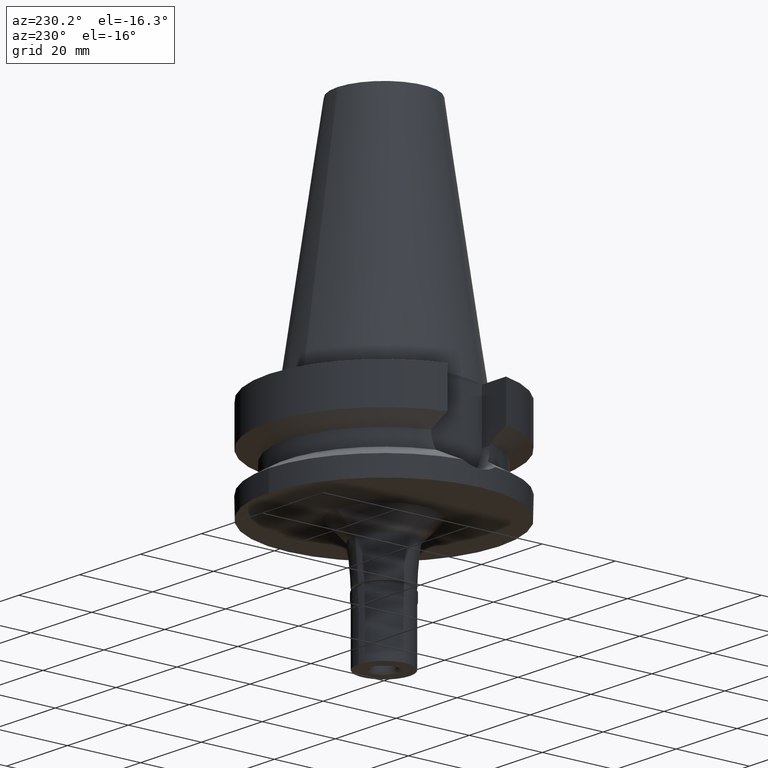
[diagram: clean part render]
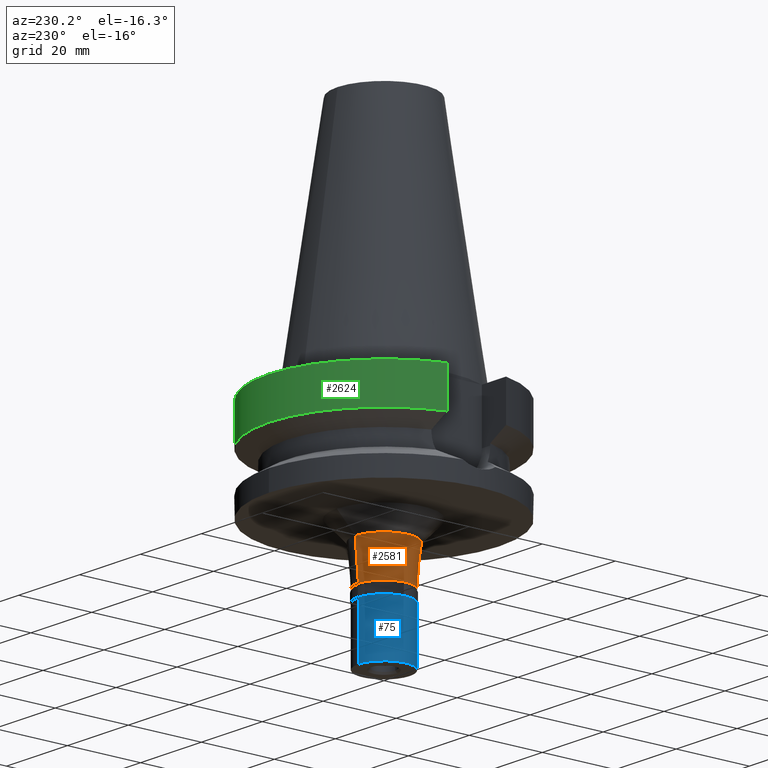
[diagram: same view with three faces highlighted in distinct colors, each labeled with its STEP entity id]
A machine part, auxiliary view with three faces highlighted in distinct colors.
Their STEP definitions:

[orange] entity #2581 — the highlighted conical surface has half-angle 5 deg.
#32 = LINE ( 'NONE', #270, #374 ) ;
#87 = DIRECTION ( 'NONE',  ( 0.0000000000000000000, 1.000000000000000000, 0.0000000000000000000 ) ) ;
#170 = EDGE_CURVE ( 'NONE', #1891, #2544, #873, .T. ) ;
#177 = EDGE_LOOP ( 'NONE', ( #793, #1823, #385, #601 ) ) ;
#270 = CARTESIAN_POINT ( 'NONE',  ( 0.0000000000000000000, -7.901133234318000298, -32.00000000000000000 ) ) ;
#374 = VECTOR ( 'NONE', #552, 1000.000000000000114 ) ;
#385 = ORIENTED_EDGE ( 'NONE', *, *, #732, .T. ) ;
#552 = DIRECTION ( 'NONE',  ( 0.0000000000000000000, 0.08715574274773338348, -0.9961946980917388839 ) ) ;
#584 = CARTESIAN_POINT ( 'NONE',  ( 0.0000000000000000000, 0.0000000000000000000, -32.00000000000000000 ) ) ;
#601 = ORIENTED_EDGE ( 'NONE', *, *, #170, .T. ) ;
#658 = EDGE_CURVE ( 'NONE', #2544, #1069, #942, .T. ) ;
#732 = EDGE_CURVE ( 'NONE', #955, #1891, #1819, .T. ) ;
#780 = CARTESIAN_POINT ( 'NONE',  ( 0.0000000000000000000, 7.000000000000000000, -42.29999999999999716 ) ) ;
#793 = ORIENTED_EDGE ( 'NONE', *, *, #658, .T. ) ;
#819 = DIRECTION ( 'NONE',  ( 0.0000000000000000000, 0.0000000000000000000, 1.000000000000000000 ) ) ;
#873 = LINE ( 'NONE', #2486, #2251 ) ;
#899 = AXIS2_PLACEMENT_3D ( 'NONE', #584, #2466, #2647 ) ;
#942 = CIRCLE ( 'NONE', #1126, 7.000000000000000000 ) ;
#955 = VERTEX_POINT ( 'NONE', #2277 ) ;
#971 = FACE_OUTER_BOUND ( 'NONE', #177, .T. ) ;
#1069 = VERTEX_POINT ( 'NONE', #2618 ) ;
#1097 = CONICAL_SURFACE ( 'NONE', #2270, 7.450566617158999705, 0.08726646259969973729 ) ;
#1126 = AXIS2_PLACEMENT_3D ( 'NONE', #1949, #819, #2883 ) ;
#1582 = DIRECTION ( 'NONE',  ( 0.0000000000000000000, -0.08715574274773338348, -0.9961946980917388839 ) ) ;
#1819 = CIRCLE ( 'NONE', #899, 7.901133234318999499 ) ;
#1823 = ORIENTED_EDGE ( 'NONE', *, *, #2279, .F. ) ;
#1891 = VERTEX_POINT ( 'NONE', #2908 ) ;
#1931 = DIRECTION ( 'NONE',  ( 0.0000000000000000000, 0.0000000000000000000, 1.000000000000000000 ) ) ;
#1949 = CARTESIAN_POINT ( 'NONE',  ( 0.0000000000000000000, 0.0000000000000000000, -42.29999999999999716 ) ) ;
#2108 = CARTESIAN_POINT ( 'NONE',  ( 0.0000000000000000000, 0.0000000000000000000, -37.15000000000000568 ) ) ;
#2251 = VECTOR ( 'NONE', #1582, 1000.000000000000114 ) ;
#2270 = AXIS2_PLACEMENT_3D ( 'NONE', #2108, #1931, #87 ) ;
#2277 = CARTESIAN_POINT ( 'NONE',  ( 0.0000000000000000000, -7.901133234318000298, -32.00000000000000000 ) ) ;
#2279 = EDGE_CURVE ( 'NONE', #955, #1069, #32, .T. ) ;
#2466 = DIRECTION ( 'NONE',  ( 0.0000000000000000000, 0.0000000000000000000, -1.000000000000000000 ) ) ;
#2486 = CARTESIAN_POINT ( 'NONE',  ( 0.0000000000000000000, 7.901133234318000298, -32.00000000000000000 ) ) ;
#2544 = VERTEX_POINT ( 'NONE', #780 ) ;
#2581 = ADVANCED_FACE ( 'NONE', ( #971 ), #1097, .T. ) ;
#2618 = CARTESIAN_POINT ( 'NONE',  ( 0.0000000000000000000, -7.000000000000000000, -42.29999999999999716 ) ) ;
#2647 = DIRECTION ( 'NONE',  ( 0.0000000000000000000, -1.000000000000000000, 0.0000000000000000000 ) ) ;
#2883 = DIRECTION ( 'NONE',  ( 0.0000000000000000000, 1.000000000000000000, 0.0000000000000000000 ) ) ;
#2908 = CARTESIAN_POINT ( 'NONE',  ( 0.0000000000000000000, 7.901133234318000298, -32.00000000000000000 ) ) ;

[blue] entity #75 — the highlighted cylindrical surface (edge-blend (fillet) strip) has radius 7 mm, axis along (0, 0, 1).
#16 = DIRECTION ( 'NONE',  ( 0.0000000000000000000, 0.0000000000000000000, -1.000000000000000000 ) ) ;
#75 = ADVANCED_FACE ( 'NONE', ( #439 ), #1806, .T. ) ;
#220 = AXIS2_PLACEMENT_3D ( 'NONE', #2716, #656, #1571 ) ;
#380 = CIRCLE ( 'NONE', #2742, 7.000000000000000000 ) ;
#439 = FACE_OUTER_BOUND ( 'NONE', #2198, .T. ) ;
#454 = CARTESIAN_POINT ( 'NONE',  ( 0.0000000000000000000, -7.000000000000000000, -17.00000000000000000 ) ) ;
#656 = DIRECTION ( 'NONE',  ( 0.0000000000000000000, 0.0000000000000000000, 1.000000000000000000 ) ) ;
#659 = LINE ( 'NONE', #2522, #668 ) ;
#668 = VECTOR ( 'NONE', #671, 1000.000000000000000 ) ;
#671 = DIRECTION ( 'NONE',  ( 0.0000000000000000000, 0.0000000000000000000, -1.000000000000000000 ) ) ;
#721 = DIRECTION ( 'NONE',  ( 0.0000000000000000000, 1.000000000000000000, 0.0000000000000000000 ) ) ;
#777 = CARTESIAN_POINT ( 'NONE',  ( 0.0000000000000000000, -7.000000000000000000, -2.299999999999999822 ) ) ;
#943 = CIRCLE ( 'NONE', #2916, 7.000000000000000000 ) ;
#944 = CARTESIAN_POINT ( 'NONE',  ( 0.0000000000000000000, 0.0000000000000000000, -17.00000000000000000 ) ) ;
#983 = VERTEX_POINT ( 'NONE', #1860 ) ;
#1004 = CARTESIAN_POINT ( 'NONE',  ( 0.0000000000000000000, 7.000000000000000000, -2.299999999999999822 ) ) ;
#1058 = EDGE_CURVE ( 'NONE', #2364, #1761, #943, .T. ) ;
#1211 = ORIENTED_EDGE ( 'NONE', *, *, #2507, .T. ) ;
#1348 = EDGE_CURVE ( 'NONE', #2364, #1528, #659, .T. ) ;
#1412 = CARTESIAN_POINT ( 'NONE',  ( 0.0000000000000000000, 0.0000000000000000000, -2.299999999999999822 ) ) ;
#1455 = LINE ( 'NONE', #1004, #2506 ) ;
#1528 = VERTEX_POINT ( 'NONE', #454 ) ;
#1571 = DIRECTION ( 'NONE',  ( 0.0000000000000000000, 1.000000000000000000, 0.0000000000000000000 ) ) ;
#1685 = DIRECTION ( 'NONE',  ( 0.0000000000000000000, -1.000000000000000000, 0.0000000000000000000 ) ) ;
#1761 = VERTEX_POINT ( 'NONE', #2842 ) ;
#1806 = CYLINDRICAL_SURFACE ( 'NONE', #220, 7.000000000000000000 ) ;
#1860 = CARTESIAN_POINT ( 'NONE',  ( 0.0000000000000000000, 7.000000000000000000, -17.00000000000000000 ) ) ;
#1966 = ORIENTED_EDGE ( 'NONE', *, *, #1058, .T. ) ;
#2086 = DIRECTION ( 'NONE',  ( 0.0000000000000000000, 0.0000000000000000000, -1.000000000000000000 ) ) ;
#2137 = DIRECTION ( 'NONE',  ( 0.0000000000000000000, 0.0000000000000000000, 1.000000000000000000 ) ) ;
#2179 = ORIENTED_EDGE ( 'NONE', *, *, #1348, .F. ) ;
#2198 = EDGE_LOOP ( 'NONE', ( #1211, #2179, #1966, #2775 ) ) ;
#2364 = VERTEX_POINT ( 'NONE', #777 ) ;
#2435 = EDGE_CURVE ( 'NONE', #1761, #983, #1455, .T. ) ;
#2506 = VECTOR ( 'NONE', #2086, 1000.000000000000000 ) ;
#2507 = EDGE_CURVE ( 'NONE', #983, #1528, #380, .T. ) ;
#2522 = CARTESIAN_POINT ( 'NONE',  ( 0.0000000000000000000, -7.000000000000000000, -2.299999999999999822 ) ) ;
#2716 = CARTESIAN_POINT ( 'NONE',  ( 0.0000000000000000000, 0.0000000000000000000, -17.85000000000000142 ) ) ;
#2742 = AXIS2_PLACEMENT_3D ( 'NONE', #944, #2137, #721 ) ;
#2775 = ORIENTED_EDGE ( 'NONE', *, *, #2435, .T. ) ;
#2842 = CARTESIAN_POINT ( 'NONE',  ( 0.0000000000000000000, 7.000000000000000000, -2.299999999999999822 ) ) ;
#2916 = AXIS2_PLACEMENT_3D ( 'NONE', #1412, #16, #1685 ) ;

[green] entity #2624 — the highlighted cylindrical surface (partial cylindrical patch) has radius 31.5 mm, axis along (0, 0, -1).
#69 = LINE ( 'NONE', #1646, #1343 ) ;
#73 = CIRCLE ( 'NONE', #2630, 31.50000000000000000 ) ;
#111 = DIRECTION ( 'NONE',  ( 0.0000000000000000000, 1.000000000000000000, 0.0000000000000000000 ) ) ;
#285 = EDGE_CURVE ( 'NONE', #2616, #348, #73, .T. ) ;
#348 = VERTEX_POINT ( 'NONE', #887 ) ;
#366 = CARTESIAN_POINT ( 'NONE',  ( -30.45402162025999715, 8.050004170978999340, -11.56546808228000067 ) ) ;
#431 = AXIS2_PLACEMENT_3D ( 'NONE', #583, #2231, #847 ) ;
#475 = VERTEX_POINT ( 'NONE', #366 ) ;
#481 = CARTESIAN_POINT ( 'NONE',  ( -30.45402272279000044, 8.050000000000000711, -1.000000000000000000 ) ) ;
#495 = FACE_OUTER_BOUND ( 'NONE', #1527, .T. ) ;
#583 = CARTESIAN_POINT ( 'NONE',  ( 0.0000000000000000000, 1.065333950388000029E-14, -11.56550565266999975 ) ) ;
#618 = ORIENTED_EDGE ( 'NONE', *, *, #285, .T. ) ;
#767 = AXIS2_PLACEMENT_3D ( 'NONE', #1943, #1026, #2186 ) ;
#847 = DIRECTION ( 'NONE',  ( 0.0000000000000000000, 1.000000000000000000, 0.0000000000000000000 ) ) ;
#887 = CARTESIAN_POINT ( 'NONE',  ( 30.45402272279000044, 8.050000000000000711, -0.9999999999999000799 ) ) ;
#994 = LINE ( 'NONE', #1700, #1419 ) ;
#1026 = DIRECTION ( 'NONE',  ( 0.0000000000000000000, 0.0000000000000000000, -1.000000000000000000 ) ) ;
#1053 = EDGE_CURVE ( 'NONE', #2193, #348, #994, .T. ) ;
#1343 = VECTOR ( 'NONE', #2123, 1000.000000000000000 ) ;
#1364 = ORIENTED_EDGE ( 'NONE', *, *, #1053, .F. ) ;
#1419 = VECTOR ( 'NONE', #1666, 1000.000000000000000 ) ;
#1527 = EDGE_LOOP ( 'NONE', ( #2752, #618, #1364, #2824 ) ) ;
#1646 = CARTESIAN_POINT ( 'NONE',  ( -30.45402272279000044, 8.050000000000000711, -1.000000000000000000 ) ) ;
#1651 = CARTESIAN_POINT ( 'NONE',  ( 30.45402291811999618, 8.049999261036999698, -11.56551230834000066 ) ) ;
#1666 = DIRECTION ( 'NONE',  ( -1.848763735018990004E-08, 6.994097664625962567E-08, 0.9999999999999973355 ) ) ;
#1700 = CARTESIAN_POINT ( 'NONE',  ( 30.45402291811999618, 8.049999261036999698, -11.56551230834000066 ) ) ;
#1784 = CIRCLE ( 'NONE', #431, 31.50000000000000000 ) ;
#1895 = EDGE_CURVE ( 'NONE', #2193, #475, #1784, .T. ) ;
#1943 = CARTESIAN_POINT ( 'NONE',  ( 0.0000000000000000000, 2.099901866497999886E-14, 71.46999999999999886 ) ) ;
#2123 = DIRECTION ( 'NONE',  ( 1.043520676522017359E-07, 3.947746453501063472E-07, -0.9999999999999166223 ) ) ;
#2164 = CARTESIAN_POINT ( 'NONE',  ( 0.0000000000000000000, 2.099901866497999886E-14, -0.9999999999999000799 ) ) ;
#2186 = DIRECTION ( 'NONE',  ( 0.0000000000000000000, -1.000000000000000000, 0.0000000000000000000 ) ) ;
#2193 = VERTEX_POINT ( 'NONE', #1651 ) ;
#2231 = DIRECTION ( 'NONE',  ( 0.0000000000000000000, 0.0000000000000000000, 1.000000000000000000 ) ) ;
#2420 = DIRECTION ( 'NONE',  ( 0.0000000000000000000, 0.0000000000000000000, -1.000000000000000000 ) ) ;
#2524 = EDGE_CURVE ( 'NONE', #2616, #475, #69, .T. ) ;
#2616 = VERTEX_POINT ( 'NONE', #481 ) ;
#2624 = ADVANCED_FACE ( 'NONE', ( #495 ), #2887, .T. ) ;
#2630 = AXIS2_PLACEMENT_3D ( 'NONE', #2164, #2420, #111 ) ;
#2752 = ORIENTED_EDGE ( 'NONE', *, *, #2524, .F. ) ;
#2824 = ORIENTED_EDGE ( 'NONE', *, *, #1895, .T. ) ;
#2887 = CYLINDRICAL_SURFACE ( 'NONE', #767, 31.50000000000000000 ) ;